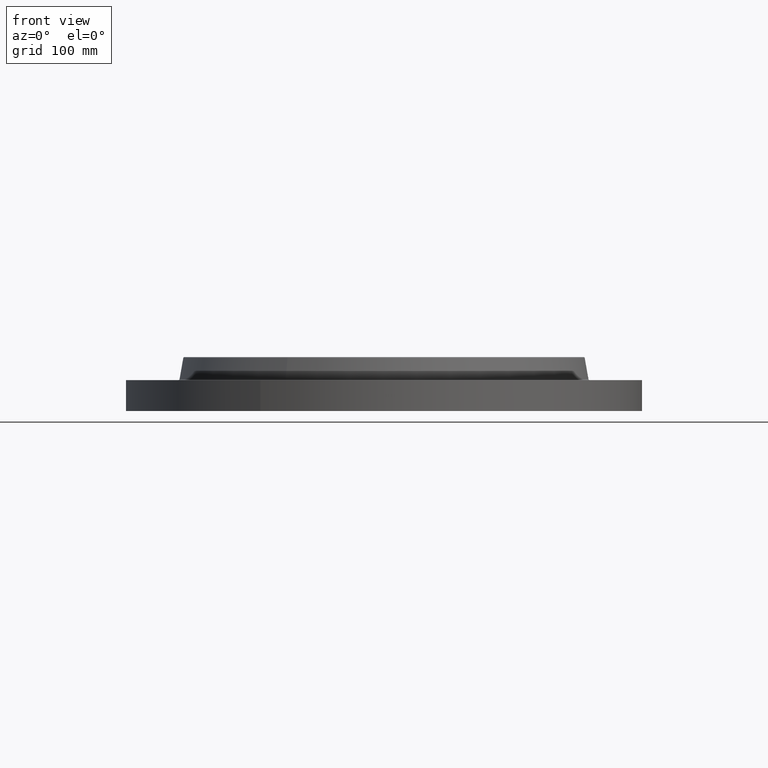
[diagram: clean part render]
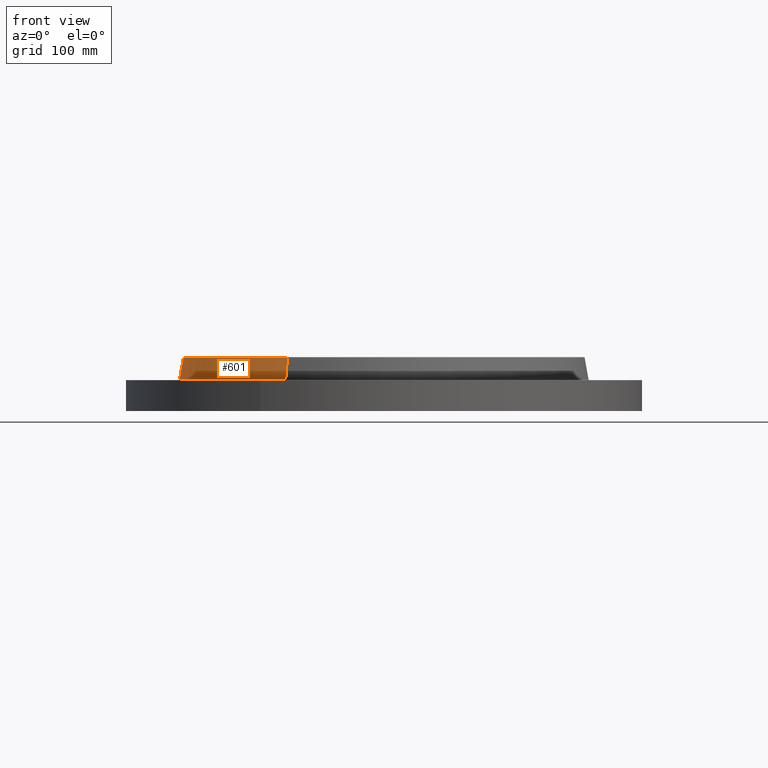
[diagram: same view with one face highlighted and labeled with its STEP entity id]
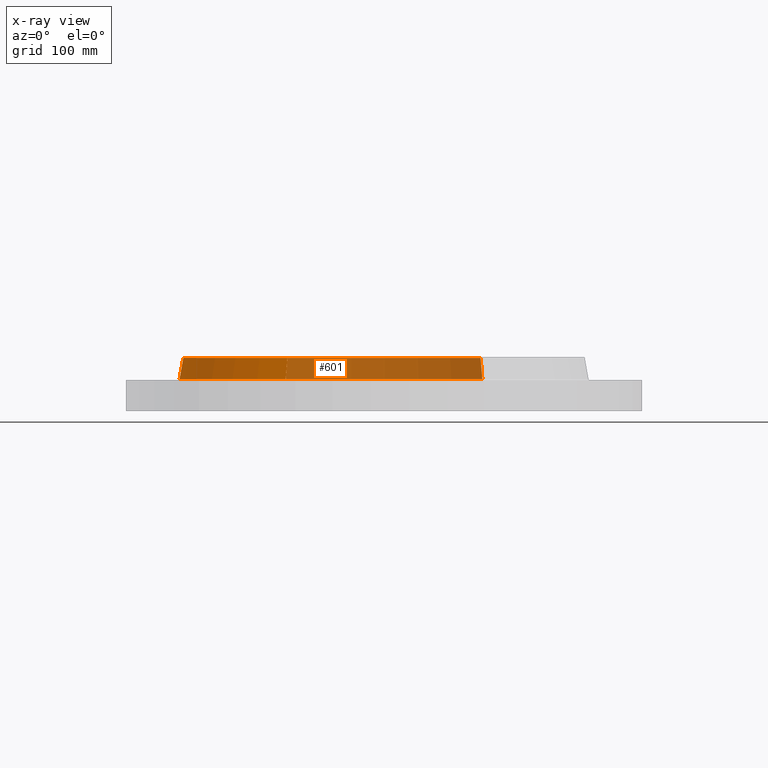
[diagram: x-ray of the same camera — body ghosted, the highlighted face saturated]
A machine part, front view. The second image highlights one B-rep face of the part: STEP entity #601.
The next image is the same camera in x-ray: the body ghosted, the highlighted face saturated — about 65% of this face is hidden behind the body in this view.
In plain terms, the highlighted conical surface has half-angle 10 deg.
Its self-contained STEP definition (entity closure, byte-faithful):
#549=AXIS2_PLACEMENT_3D('Circle Axis2P3D',#547,#548,$) ;
#562=AXIS2_PLACEMENT_3D('Cone Axis2P3D',#559,#560,#561) ;
#592=AXIS2_PLACEMENT_3D('Circle Axis2P3D',#590,#591,$) ;
#520=CARTESIAN_POINT('Vertex',(4.76129848206,8.71549841081,1.54958110935)) ;
#527=CARTESIAN_POINT('Vertex',(-4.76129848206,-8.71549841081,1.54958110935)) ;
#547=CARTESIAN_POINT('Axis2P3D Location',(0.,0.,1.54958110935)) ;
#559=CARTESIAN_POINT('Axis2P3D Location',(0.,0.,2.57041889067)) ;
#564=CARTESIAN_POINT('Line Origine',(4.71814988543,8.63651543449,2.06000000001)) ;
#568=CARTESIAN_POINT('Vertex',(4.67500128881,8.55753245816,2.57041889067)) ;
#575=CARTESIAN_POINT('Vertex',(-4.67500128881,-8.55753245816,2.57041889067)) ;
#578=CARTESIAN_POINT('Line Origine',(-4.71814988543,-8.63651543449,2.06000000001)) ;
#590=CARTESIAN_POINT('Axis2P3D Location',(0.,0.,2.57041889067)) ;
#548=DIRECTION('Axis2P3D Direction',(0.,0.,-0.0393700787402)) ;
#560=DIRECTION('Axis2P3D Direction',(0.,0.,-0.0393700787402)) ;
#561=DIRECTION('Axis2P3D XDirection',(-0.0188750212049,-0.0345504945626,0.)) ;
#565=DIRECTION('Vector Direction',(0.00327761303565,0.00599963041829,-0.03877195878)) ;
#579=DIRECTION('Vector Direction',(-0.00327761303565,-0.00599963041829,-0.03877195878)) ;
#591=DIRECTION('Axis2P3D Direction',(0.,0.,-0.0393700787402)) ;
#566=VECTOR('Line Direction',#565,0.0393700787402) ;
#580=VECTOR('Line Direction',#579,0.0393700787402) ;
#596=ORIENTED_EDGE('',*,*,#551,.F.) ;
#597=ORIENTED_EDGE('',*,*,#582,.T.) ;
#598=ORIENTED_EDGE('',*,*,#594,.T.) ;
#599=ORIENTED_EDGE('',*,*,#570,.F.) ;
#601=ADVANCED_FACE('PartBody',(#600),#563,.T.) ;
#550=CIRCLE('generated circle',#549,9.93125751273) ;
#593=CIRCLE('generated circle',#592,9.75125626896) ;
#563=CONICAL_SURFACE('Cone',#562,9.75125626896,0.174532925199) ;
#551=EDGE_CURVE('',#528,#521,#550,.T.) ;
#570=EDGE_CURVE('',#521,#569,#567,.F.) ;
#582=EDGE_CURVE('',#528,#576,#581,.F.) ;
#594=EDGE_CURVE('',#576,#569,#593,.T.) ;
#595=EDGE_LOOP('',(#596,#597,#598,#599)) ;
#600=FACE_OUTER_BOUND('',#595,.T.) ;
#567=LINE('Line',#564,#566) ;
#581=LINE('Line',#578,#580) ;
#521=VERTEX_POINT('',#520) ;
#528=VERTEX_POINT('',#527) ;
#569=VERTEX_POINT('',#568) ;
#576=VERTEX_POINT('',#575) ;